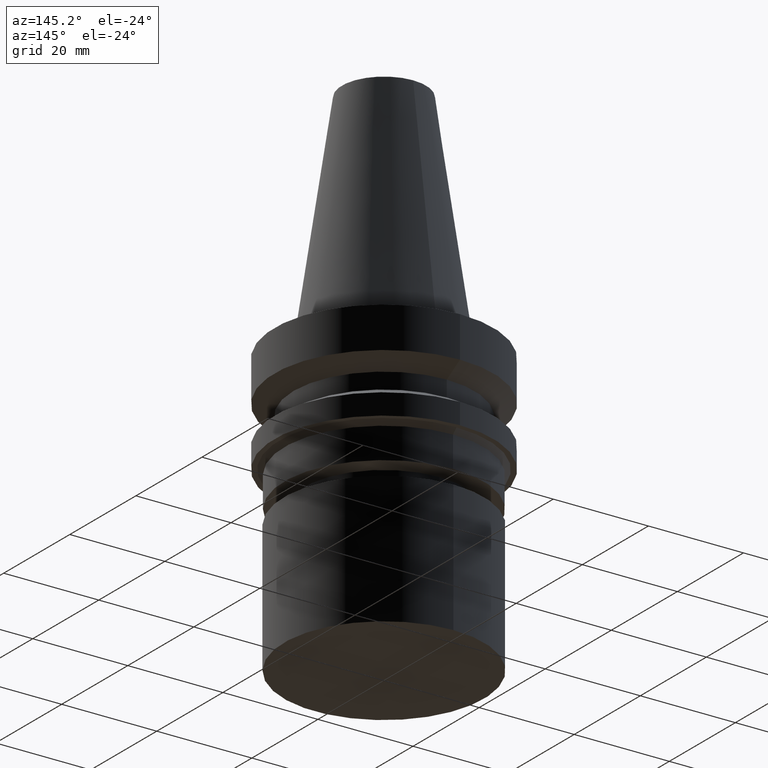
[diagram: clean part render]
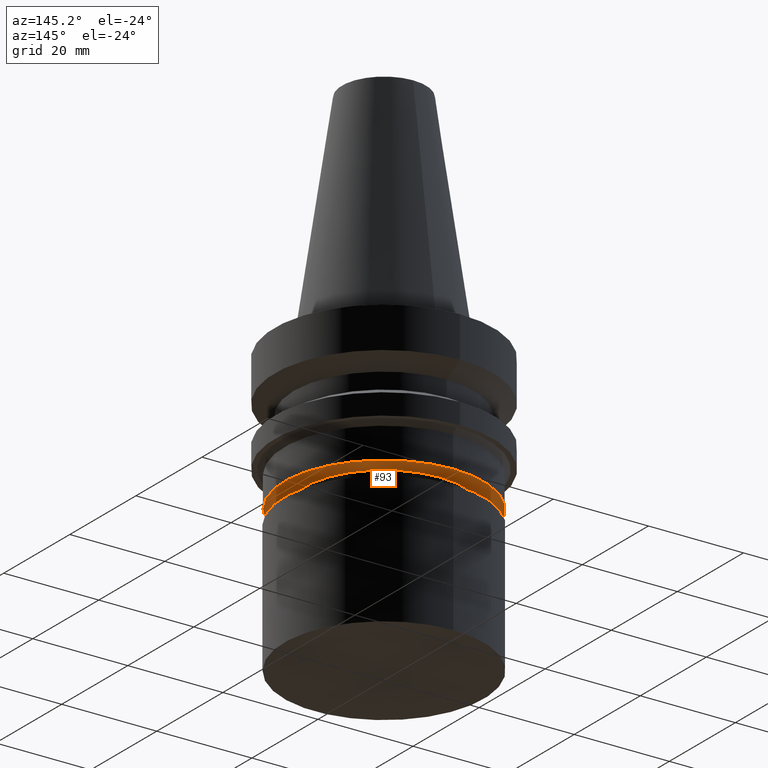
[diagram: same view with one face highlighted and labeled with its STEP entity id]
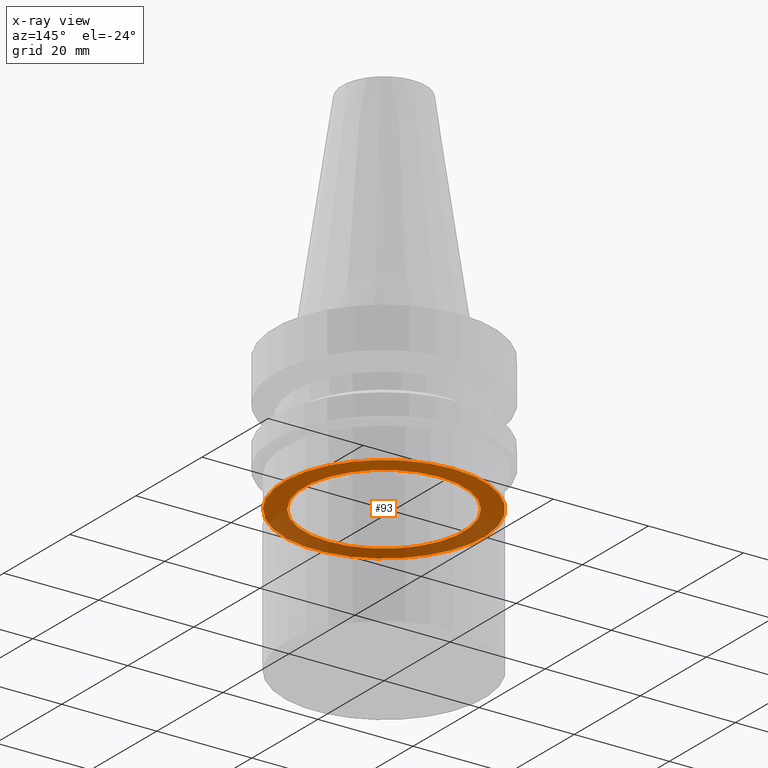
[diagram: x-ray of the same camera — body ghosted, the highlighted face saturated]
A machine part, auxiliary view. The second image highlights one B-rep face of the part: STEP entity #93.
The next image is the same camera in x-ray: the body ghosted, the highlighted face saturated — about 45% of this face is hidden behind the body in this view.
In plain terms, the highlighted planar face has unit normal (0, -0, -1).
Its self-contained STEP definition (entity closure, byte-faithful):
#93=ADVANCED_FACE('Unnamed[1]',(#227,#228),#229,.T.);
#110=EDGE_CURVE('Unnamed[1]',#253,#253,#254,.T.);
#115=EDGE_CURVE('Unnamed[1]',#260,#260,#261,.T.);
#227=FACE_BOUND('',#408,.T.);
#228=FACE_OUTER_BOUND('',#409,.T.);
#229=PLANE('',#410);
#253=VERTEX_POINT('',#440);
#254=CIRCLE('',#441,16.7499999999907);
#260=VERTEX_POINT('',#449);
#261=CIRCLE('',#450,20.9270816115704);
#408=EDGE_LOOP('',(#608));
#409=EDGE_LOOP('',(#609));
#410=AXIS2_PLACEMENT_3D('',#610,#611,#612);
#440=CARTESIAN_POINT('',(1.8063540287423E-015,16.7499999999907,-29.4999999999992));
#441=AXIS2_PLACEMENT_3D('',#635,#636,#637);
#449=CARTESIAN_POINT('',(1.80635402874234E-015,20.9270816115704,-29.4999999999999));
#450=AXIS2_PLACEMENT_3D('',#643,#644,#645);
#608=ORIENTED_EDGE('',*,*,#110,.F.);
#609=ORIENTED_EDGE('',*,*,#115,.T.);
#610=CARTESIAN_POINT('',(1.80635402874232E-015,18.8385408057806,-29.4999999999996));
#611=DIRECTION('',(6.12323399573677E-017,-1.72534175496133E-013,-1.0));
#612=DIRECTION('',(1.05598441355126E-029,1.0,-1.72534175496133E-013));
#635=CARTESIAN_POINT('',(1.8063540287423E-015,3.6127080574846E-015,-29.4999999999992));
#636=DIRECTION('',(6.12323399573677E-017,1.22464679914735E-016,-1.0));
#637=DIRECTION('',(-1.23259516440783E-032,1.0,1.22464679914735E-016));
#643=CARTESIAN_POINT('',(1.80635402874234E-015,3.61270805748468E-015,-29.4999999999999));
#644=DIRECTION('',(6.12323399573677E-017,1.22464679914735E-016,-1.0));
#645=DIRECTION('',(-1.23259516440783E-032,1.0,1.22464679914735E-016));